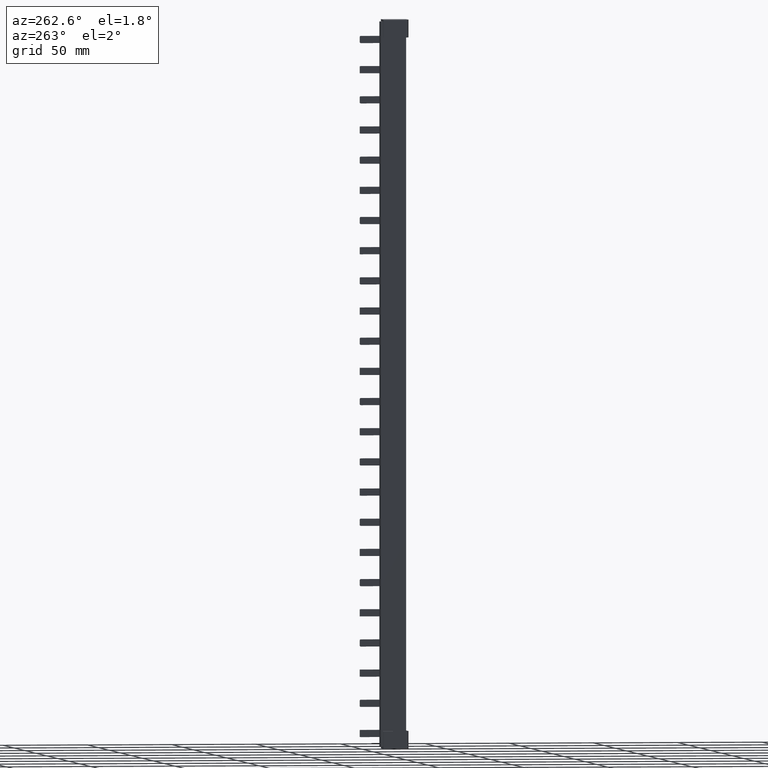
[diagram: clean part render]
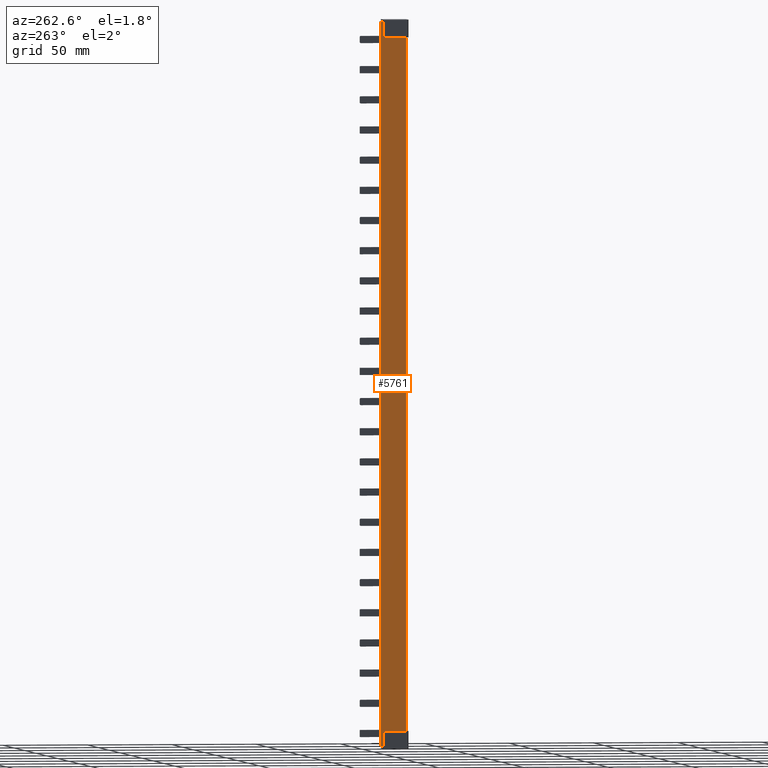
[diagram: same view with one face highlighted and labeled with its STEP entity id]
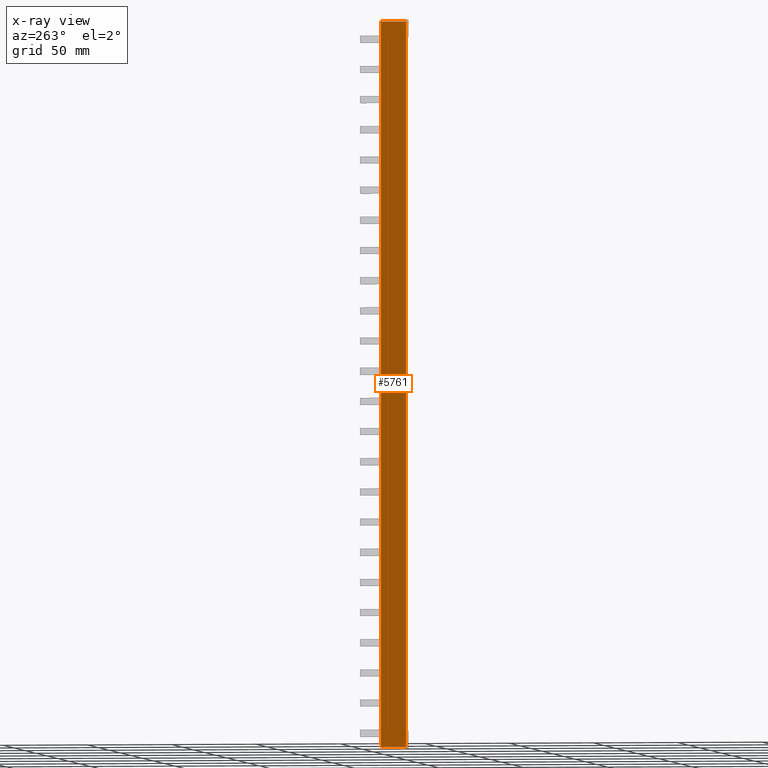
[diagram: x-ray of the same camera — body ghosted, the highlighted face saturated]
A machine part, auxiliary view. The second image highlights one B-rep face of the part: STEP entity #5761.
The next image is the same camera in x-ray: the body ghosted, the highlighted face saturated — about 0% of this face is hidden behind the body in this view.
In plain terms, the highlighted planar face has unit normal (1, -0, 0).
Its self-contained STEP definition (entity closure, byte-faithful):
#3157 = PLANE ( 'NONE',  #3319 ) ;
#3166 = DIRECTION ( 'NONE',  ( 0.0000000000000000000, 0.0000000000000000000, -1.000000000000000000 ) ) ;
#3210 = FACE_OUTER_BOUND ( 'NONE', #28394, .T. ) ;
#3216 = CARTESIAN_POINT ( 'NONE',  ( 0.0000000000000000000, 14.99999999999998600, 217.7999999999999800 ) ) ;
#3219 = DIRECTION ( 'NONE',  ( 1.000000000000000000, -0.0000000000000000000, 0.0000000000000000000 ) ) ;
#3319 = AXIS2_PLACEMENT_3D ( 'NONE', #3216, #3219, #3166 ) ;
#5761 = ADVANCED_FACE ( 'NONE', ( #3210 ), #3157, .F. ) ;
#18164 = ORIENTED_EDGE ( 'NONE', *, *, #37787, .F. ) ;
#18206 = ORIENTED_EDGE ( 'NONE', *, *, #37714, .T. ) ;
#18212 = ORIENTED_EDGE ( 'NONE', *, *, #37698, .F. ) ;
#18228 = ORIENTED_EDGE ( 'NONE', *, *, #37739, .T. ) ;
#18252 = ORIENTED_EDGE ( 'NONE', *, *, #37734, .F. ) ;
#18262 = ORIENTED_EDGE ( 'NONE', *, *, #37695, .F. ) ;
#18268 = ORIENTED_EDGE ( 'NONE', *, *, #37718, .F. ) ;
#18282 = ORIENTED_EDGE ( 'NONE', *, *, #37737, .F. ) ;
#23347 = VECTOR ( 'NONE', #23597, 1000.000000000000000 ) ;
#23352 = VECTOR ( 'NONE', #23576, 1000.000000000000000 ) ;
#23385 = VECTOR ( 'NONE', #23646, 1000.000000000000000 ) ;
#23394 = VECTOR ( 'NONE', #23512, 1000.000000000000000 ) ;
#23396 = VECTOR ( 'NONE', #23600, 1000.000000000000000 ) ;
#23398 = VECTOR ( 'NONE', #23505, 1000.000000000000000 ) ;
#23505 = DIRECTION ( 'NONE',  ( 0.0000000000000000000, 0.0000000000000000000, -1.000000000000000000 ) ) ;
#23510 = LINE ( 'NONE', #23524, #23398 ) ;
#23511 = LINE ( 'NONE', #23536, #23394 ) ;
#23512 = DIRECTION ( 'NONE',  ( -0.0000000000000000000, -0.0000000000000000000, 1.000000000000000000 ) ) ;
#23524 = CARTESIAN_POINT ( 'NONE',  ( 0.0000000000000000000, -3.642919299551294900E-014, 217.7999999999999800 ) ) ;
#23536 = CARTESIAN_POINT ( 'NONE',  ( 0.0000000000000000000, 14.99999999999998600, 217.7999999999999800 ) ) ;
#23545 = LINE ( 'NONE', #23586, #23352 ) ;
#23546 = CARTESIAN_POINT ( 'NONE',  ( 0.0000000000000000000, 0.0000000000000000000, -208.8000000000000100 ) ) ;
#23554 = CARTESIAN_POINT ( 'NONE',  ( 3.933136373907199300E-027, 0.008467653988947693200, 217.8000000000000100 ) ) ;
#23558 = LINE ( 'NONE', #23546, #23396 ) ;
#23569 = CARTESIAN_POINT ( 'NONE',  ( 1.573254549562616000E-027, 0.01270166588356695800, 217.8000000000000100 ) ) ;
#23573 = CARTESIAN_POINT ( 'NONE',  ( 6.043206237903278100E-027, 0.004233506536940825700, 217.7999684908489800 ) ) ;
#23576 = DIRECTION ( 'NONE',  ( 0.0000000000000000000, -1.000000000000000000, -0.0000000000000000000 ) ) ;
#23580 = CARTESIAN_POINT ( 'NONE',  ( 3.021603118951639100E-027, -3.241764495731658300E-014, 217.7999030758261700 ) ) ;
#23586 = CARTESIAN_POINT ( 'NONE',  ( 0.0000000000000000000, 14.99999999999998600, 217.7999999999999800 ) ) ;
#23597 = DIRECTION ( 'NONE',  ( 0.0000000000000000000, 1.000000000000000000, 0.0000000000000000000 ) ) ;
#23600 = DIRECTION ( 'NONE',  ( 0.0000000000000000000, 1.000000000000000000, 0.0000000000000000000 ) ) ;
#23602 = CARTESIAN_POINT ( 'NONE',  ( 1.829591166480483000E-016, 0.008389310043972766900, -208.7999994140277500 ) ) ;
#23608 = LINE ( 'NONE', #23609, #23347 ) ;
#23609 = CARTESIAN_POINT ( 'NONE',  ( 0.0000000000000000000, 14.99999999999998600, -208.7999999959532700 ) ) ;
#23616 = CARTESIAN_POINT ( 'NONE',  ( -4.196520247187057100E-011, 0.01258415160153051500, -208.7999999943346300 ) ) ;
#23618 = CARTESIAN_POINT ( 'NONE',  ( 2.152569572241859400E-011, -1.829591166069288700E-014, -208.7999030758348100 ) ) ;
#23628 = CARTESIAN_POINT ( 'NONE',  ( -2.710505428406440900E-017, 0.004194340915164216500, -208.7999678856775200 ) ) ;
#23646 = DIRECTION ( 'NONE',  ( -0.0000000000000000000, -1.000000000000000000, -0.0000000000000000000 ) ) ;
#23657 = CARTESIAN_POINT ( 'NONE',  ( 0.0000000000000000000, 14.99999999999998600, 217.7999999999999800 ) ) ;
#23661 = LINE ( 'NONE', #23657, #23385 ) ;
#28394 = EDGE_LOOP ( 'NONE', ( #18268, #18262, #18252, #18282, #18228, #18212, #18206, #18164 ) ) ;
#30990 = B_SPLINE_CURVE_WITH_KNOTS ( 'NONE', 3,
 ( #23580, #23573, #23554, #23569 ),
 .UNSPECIFIED., .F., .F.,
 ( 4, 4 ),
 ( 4.011314461476054200E-018, 1.270203568385655800E-005 ),
 .UNSPECIFIED. ) ;
#30992 = B_SPLINE_CURVE_WITH_KNOTS ( 'NONE', 3,
 ( #23616, #23602, #23628, #23618 ),
 .UNSPECIFIED., .F., .F.,
 ( 4, 4 ),
 ( 0.0000000000000000000, 1.258452479294140300E-005 ),
 .UNSPECIFIED. ) ;
#34706 = VERTEX_POINT ( 'NONE', #41464 ) ;
#34708 = VERTEX_POINT ( 'NONE', #41469 ) ;
#34723 = VERTEX_POINT ( 'NONE', #41560 ) ;
#34740 = VERTEX_POINT ( 'NONE', #41535 ) ;
#34741 = VERTEX_POINT ( 'NONE', #41568 ) ;
#34743 = VERTEX_POINT ( 'NONE', #41525 ) ;
#34747 = VERTEX_POINT ( 'NONE', #41534 ) ;
#34788 = VERTEX_POINT ( 'NONE', #41586 ) ;
#37695 = EDGE_CURVE ( 'NONE', #34723, #34747, #23511, .T. ) ;
#37698 = EDGE_CURVE ( 'NONE', #34740, #34706, #23510, .T. ) ;
#37714 = EDGE_CURVE ( 'NONE', #34740, #34741, #30990, .T. ) ;
#37718 = EDGE_CURVE ( 'NONE', #34747, #34708, #23545, .T. ) ;
#37734 = EDGE_CURVE ( 'NONE', #34788, #34723, #23558, .T. ) ;
#37737 = EDGE_CURVE ( 'NONE', #34743, #34788, #23608, .T. ) ;
#37739 = EDGE_CURVE ( 'NONE', #34743, #34706, #30992, .T. ) ;
#37787 = EDGE_CURVE ( 'NONE', #34708, #34741, #23661, .T. ) ;
#41464 = CARTESIAN_POINT ( 'NONE',  ( 2.152569572241859400E-011, -1.829591166069288700E-014, -208.7999030758348100 ) ) ;
#41469 = CARTESIAN_POINT ( 'NONE',  ( 0.0000000000000000000, 13.60000000000009400, 217.7999999999999800 ) ) ;
#41525 = CARTESIAN_POINT ( 'NONE',  ( -4.196520247187057100E-011, 0.01258415160153051500, -208.7999999943346300 ) ) ;
#41534 = CARTESIAN_POINT ( 'NONE',  ( 0.0000000000000000000, 14.99999999999998600, 217.7999999999999800 ) ) ;
#41535 = CARTESIAN_POINT ( 'NONE',  ( 3.021603118951639100E-027, -3.241764495731658300E-014, 217.7999030758261700 ) ) ;
#41560 = CARTESIAN_POINT ( 'NONE',  ( 0.0000000000000000000, 14.99999999999998600, -208.8000000000002400 ) ) ;
#41568 = CARTESIAN_POINT ( 'NONE',  ( 1.573254549562616000E-027, 0.01270166588356695800, 217.8000000000000100 ) ) ;
#41586 = CARTESIAN_POINT ( 'NONE',  ( 0.0000000000000000000, 13.60000000000009400, -208.7999999989900200 ) ) ;